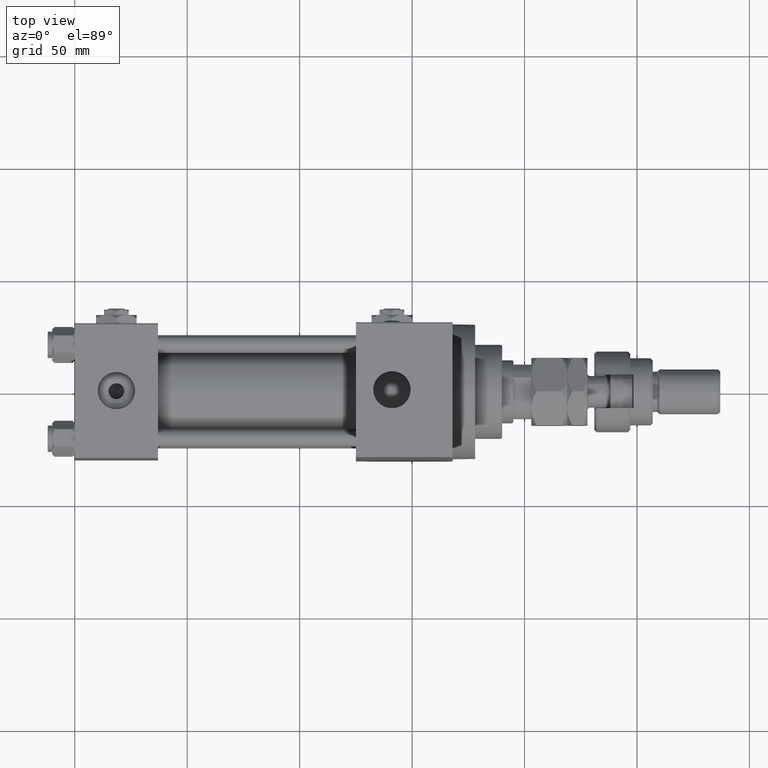
[diagram: clean part render]
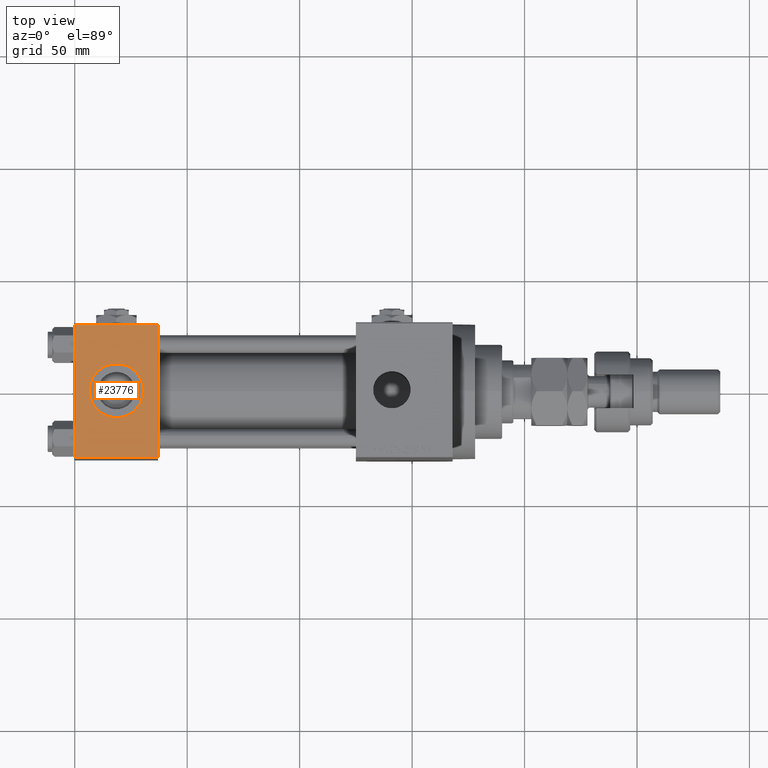
[diagram: same view with one face highlighted and labeled with its STEP entity id]
A machine part, top view. The second image highlights one B-rep face of the part: STEP entity #23776.
In plain terms, the highlighted planar face has unit normal (0, 0, -1).
Its self-contained STEP definition (entity closure, byte-faithful):
#1166 = VECTOR ( 'NONE', #27630, 1000.000000000000000 ) ;
#1867 = VECTOR ( 'NONE', #45133, 1000.000000000000000 ) ;
#2464 = VERTEX_POINT ( 'NONE', #26314 ) ;
#2470 = AXIS2_PLACEMENT_3D ( 'NONE', #2514, #15255, #19232 ) ;
#2514 = CARTESIAN_POINT ( 'NONE',  ( 37.00000000000000000, 29.99999999999999289, 30.00000000000000000 ) ) ;
#2835 = EDGE_CURVE ( 'NONE', #25112, #17245, #3674, .T. ) ;
#3581 = EDGE_CURVE ( 'NONE', #23069, #10434, #24444, .T. ) ;
#3674 = CIRCLE ( 'NONE', #19777, 12.00000000000000000 ) ;
#5453 = ORIENTED_EDGE ( 'NONE', *, *, #44166, .T. ) ;
#7232 = ORIENTED_EDGE ( 'NONE', *, *, #2835, .F. ) ;
#7524 = LINE ( 'NONE', #51014, #36285 ) ;
#8532 = ORIENTED_EDGE ( 'NONE', *, *, #9111, .T. ) ;
#9111 = EDGE_CURVE ( 'NONE', #23069, #2464, #51523, .T. ) ;
#10434 = VERTEX_POINT ( 'NONE', #23593 ) ;
#10588 = DIRECTION ( 'NONE',  ( 1.000000000000000000, 0.000000000000000000, 0.000000000000000000 ) ) ;
#11973 = CARTESIAN_POINT ( 'NONE',  ( 18.50000000000000000, -3.469446951953614978E-15, 29.99999999999999645 ) ) ;
#13063 = ORIENTED_EDGE ( 'NONE', *, *, #32802, .T. ) ;
#13079 = LINE ( 'NONE', #21032, #1867 ) ;
#14703 = DIRECTION ( 'NONE',  ( -1.000000000000000000, 0.000000000000000000, 0.000000000000000000 ) ) ;
#15223 = CARTESIAN_POINT ( 'NONE',  ( 0.000000000000000000, 29.49999999999999289, 30.00000000000000000 ) ) ;
#15255 = DIRECTION ( 'NONE',  ( 0.000000000000000000, 1.156482317317871725E-16, -1.000000000000000000 ) ) ;
#15370 = CARTESIAN_POINT ( 'NONE',  ( 30.50000000000000000, -3.469446951953614978E-15, 29.99999999999999645 ) ) ;
#16223 = DIRECTION ( 'NONE',  ( 0.000000000000000000, 0.000000000000000000, 1.000000000000000000 ) ) ;
#17245 = VERTEX_POINT ( 'NONE', #15370 ) ;
#17802 = CARTESIAN_POINT ( 'NONE',  ( 0.000000000000000000, -29.49999999999998579, 29.99999999999999289 ) ) ;
#19232 = DIRECTION ( 'NONE',  ( 0.000000000000000000, 1.000000000000000000, 1.156482317317871725E-16 ) ) ;
#19482 = DIRECTION ( 'NONE',  ( 1.000000000000000000, 0.000000000000000000, 0.000000000000000000 ) ) ;
#19777 = AXIS2_PLACEMENT_3D ( 'NONE', #49837, #29967, #10588 ) ;
#20659 = CARTESIAN_POINT ( 'NONE',  ( 37.00000000000000000, 29.49999999999999289, 30.00000000000000000 ) ) ;
#21032 = CARTESIAN_POINT ( 'NONE',  ( 0.000000000000000000, 29.99999999999999289, 30.00000000000000000 ) ) ;
#22555 = EDGE_LOOP ( 'NONE', ( #13063, #5453, #33145, #8532 ) ) ;
#23069 = VERTEX_POINT ( 'NONE', #20659 ) ;
#23593 = CARTESIAN_POINT ( 'NONE',  ( 37.00000000000000000, -29.49999999999998579, 29.99999999999999289 ) ) ;
#23646 = ORIENTED_EDGE ( 'NONE', *, *, #35729, .F. ) ;
#23776 = ADVANCED_FACE ( 'NONE', ( #51817, #26921 ), #51287, .F. ) ;
#24444 = LINE ( 'NONE', #36371, #1166 ) ;
#25112 = VERTEX_POINT ( 'NONE', #39053 ) ;
#25722 = EDGE_LOOP ( 'NONE', ( #23646, #7232 ) ) ;
#25811 = AXIS2_PLACEMENT_3D ( 'NONE', #11973, #16223, #38112 ) ;
#26314 = CARTESIAN_POINT ( 'NONE',  ( 0.000000000000000000, 29.49999999999999289, 30.00000000000000000 ) ) ;
#26921 = FACE_OUTER_BOUND ( 'NONE', #22555, .T. ) ;
#27630 = DIRECTION ( 'NONE',  ( 0.000000000000000000, -1.000000000000000000, -1.156482317317871725E-16 ) ) ;
#29967 = DIRECTION ( 'NONE',  ( 0.000000000000000000, 0.000000000000000000, 1.000000000000000000 ) ) ;
#30201 = VECTOR ( 'NONE', #14703, 1000.000000000000000 ) ;
#32802 = EDGE_CURVE ( 'NONE', #2464, #51199, #13079, .T. ) ;
#33145 = ORIENTED_EDGE ( 'NONE', *, *, #3581, .F. ) ;
#35729 = EDGE_CURVE ( 'NONE', #17245, #25112, #51186, .T. ) ;
#36285 = VECTOR ( 'NONE', #19482, 1000.000000000000000 ) ;
#36371 = CARTESIAN_POINT ( 'NONE',  ( 37.00000000000000000, 29.99999999999999289, 30.00000000000000000 ) ) ;
#38112 = DIRECTION ( 'NONE',  ( 1.000000000000000000, 0.000000000000000000, 0.000000000000000000 ) ) ;
#39053 = CARTESIAN_POINT ( 'NONE',  ( 6.499999999999997335, -1.999870792976790833E-15, 29.99999999999999645 ) ) ;
#44166 = EDGE_CURVE ( 'NONE', #51199, #10434, #7524, .T. ) ;
#45133 = DIRECTION ( 'NONE',  ( 0.000000000000000000, -1.000000000000000000, -1.156482317317871725E-16 ) ) ;
#49837 = CARTESIAN_POINT ( 'NONE',  ( 18.50000000000000000, -3.469446951953614978E-15, 29.99999999999999645 ) ) ;
#51014 = CARTESIAN_POINT ( 'NONE',  ( 37.00000000000000000, -29.50000000000000000, 29.99999999999999289 ) ) ;
#51186 = CIRCLE ( 'NONE', #25811, 12.00000000000000000 ) ;
#51199 = VERTEX_POINT ( 'NONE', #17802 ) ;
#51287 = PLANE ( 'NONE',  #2470 ) ;
#51523 = LINE ( 'NONE', #15223, #30201 ) ;
#51817 = FACE_BOUND ( 'NONE', #25722, .T. ) ;